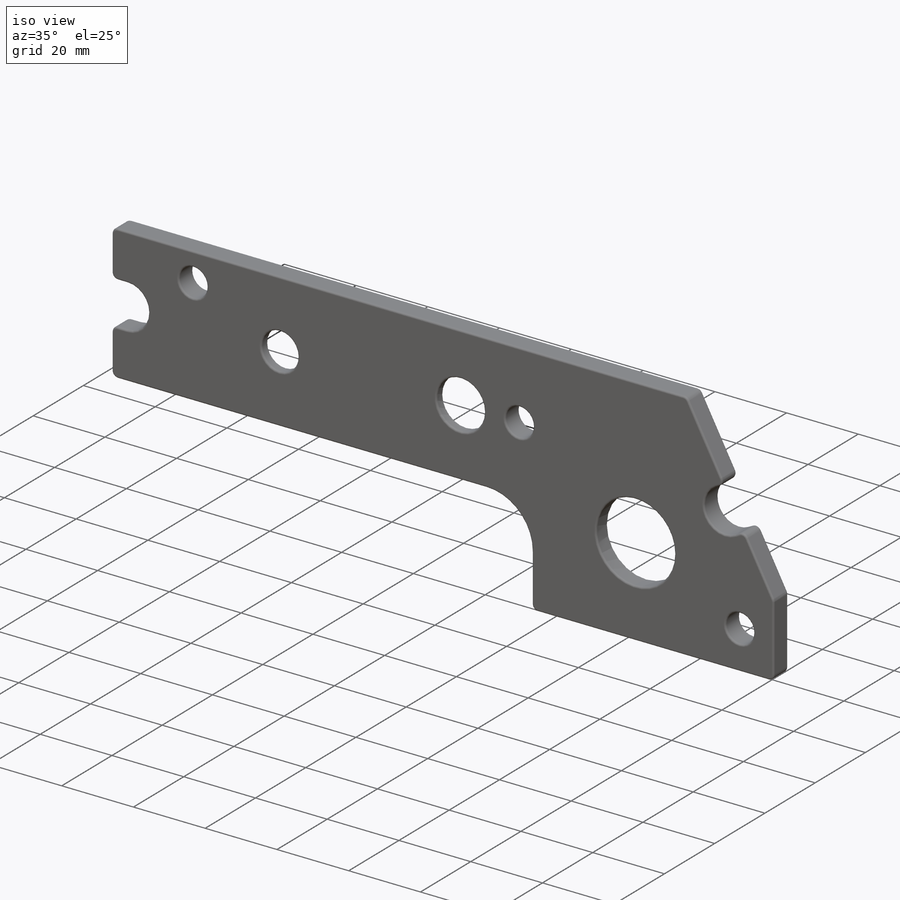
[diagram: iso view]
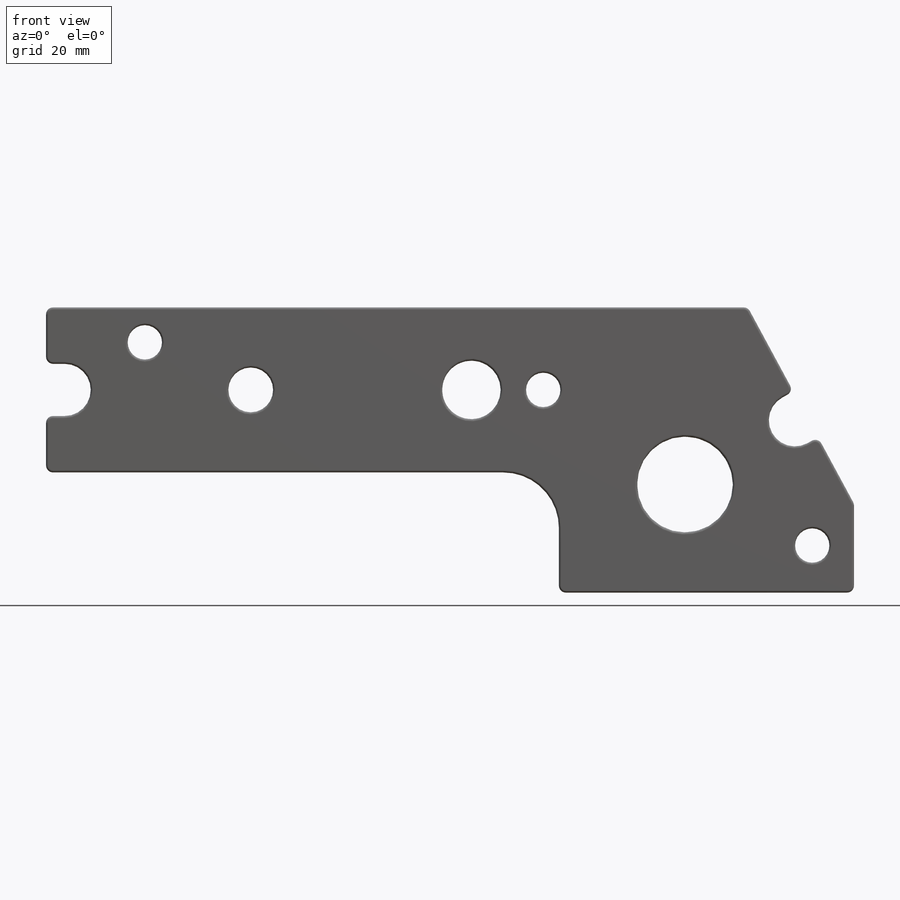
[diagram: front view]
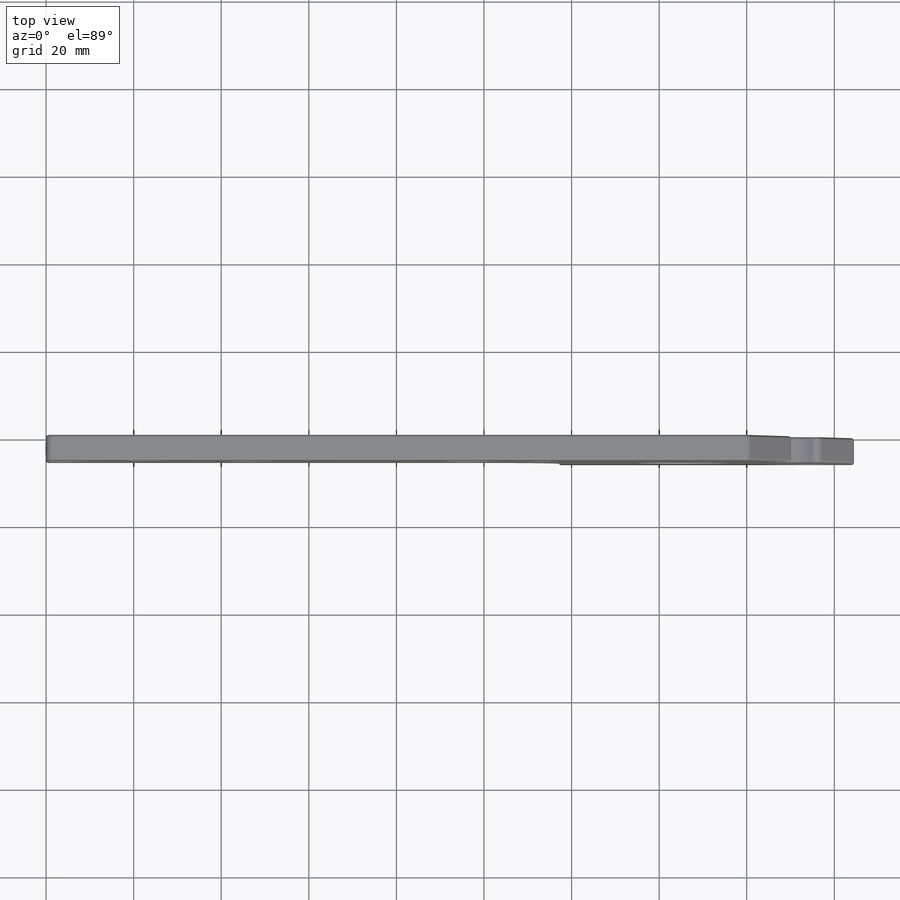
[diagram: top view]
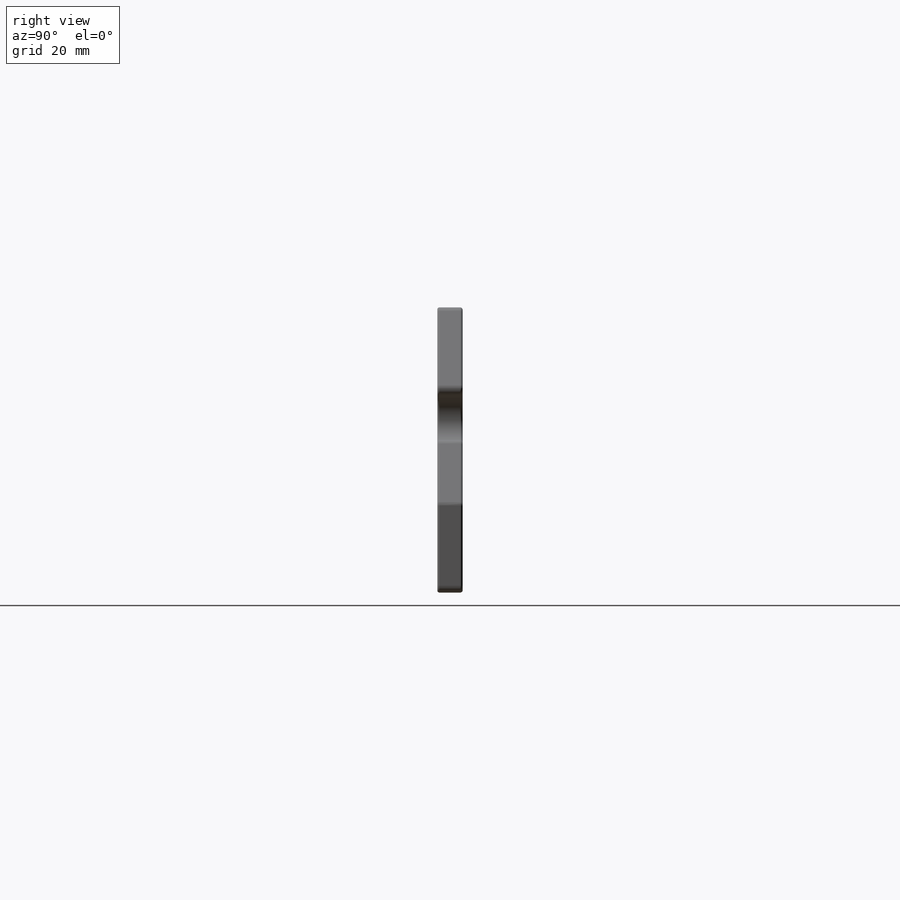
[diagram: right view]
SOLIDWORKS PART (.sldprt)
format: sldprt  version: not decoded by parser v0  size: 610,816 bytes
history: native  units: mm
features: fillet x6, sketch x4, cut_extrude x3, material x1, extrude x1, chamfer x1 (+16 scaffold rows collapsed)
feature tree (32):
  scaffold x16  (default folders/planes/origin — collapsed)
  material  "Material <not specified>"
  sketch  "Sketch1"  dims[c1.D2=~11.90625mm c1.D9=~11.90625mm c1.D10=~11.90625mm c1.D1=37.6809mm c2.D2=184.4802mm c2.D3=27.4447mm c2.D4=67.3735mm c2.D5=20.32mm c2.D6=184.4802mm c3.D6=118.4deg c3.D8=~9.447328mm c3.D9=44.8056mm c3.D7=39.3446mm c4.D8=13.4874mm c4.D2=4.2545mm]
  extrude  "Extrude1"  Depth=5.7912mm
  fillet  "Fillet1"  Radius=1.5875mm
  fillet  "Fillet2"  Radius=12.7mm
  sketch  "Sketch2"  dims[c1.D3=21.8821mm c1.D6=10.2235mm c1.D7=13.3858mm c1.D8=~18.330801mm c1.D1=38.5826mm c1.D2=24.6888mm c1.D4=87.3633mm c1.D5=137.7442mm c2.D8=70.993mm]
  cut_extrude  "Extrude2"  [1 undecoded]
  sketch  "Sketch3"  dims[D2=7.8486mm D1=70.9549mm D3=57.15mm D4=161.925mm D5=9.525mm D6=11.1125mm]
  cut_extrude  "Extrude4"  [1 undecoded]
  fillet  "Fillet3"  Radius=0.508mm
  chamfer  "Chamfer1"  Distance=2.54mm Angle=30deg
  sketch  "Sketch4"  dims[D1=19.05mm D2=22.6568mm]
  cut_extrude  "Extrude5"  Depth=3.38582mm
  fillet  "Fillet4"  Radius=2.54mm
  fillet  "Fillet5"  Radius=0.5842mm
  fillet  "Fillet6"  Radius=0.5842mm
decode coverage: 13 of 15 modeling features carry decoded parameters
note: ~ marks probable driven/reference dimensions
note: 2 parameter values undecoded
note: suppression state not decoded; provenance and decode notes live in map.json
